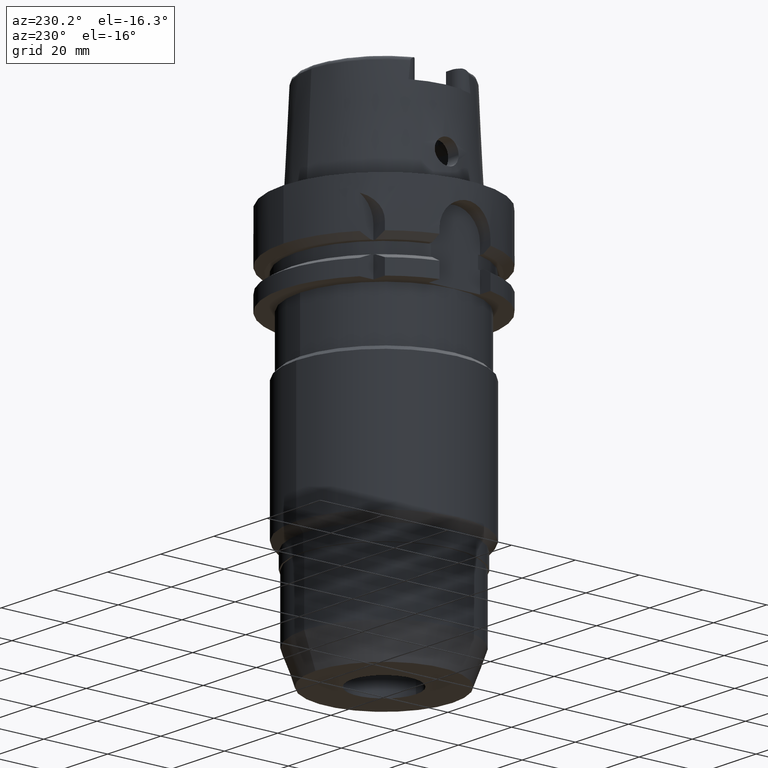
[diagram: clean part render]
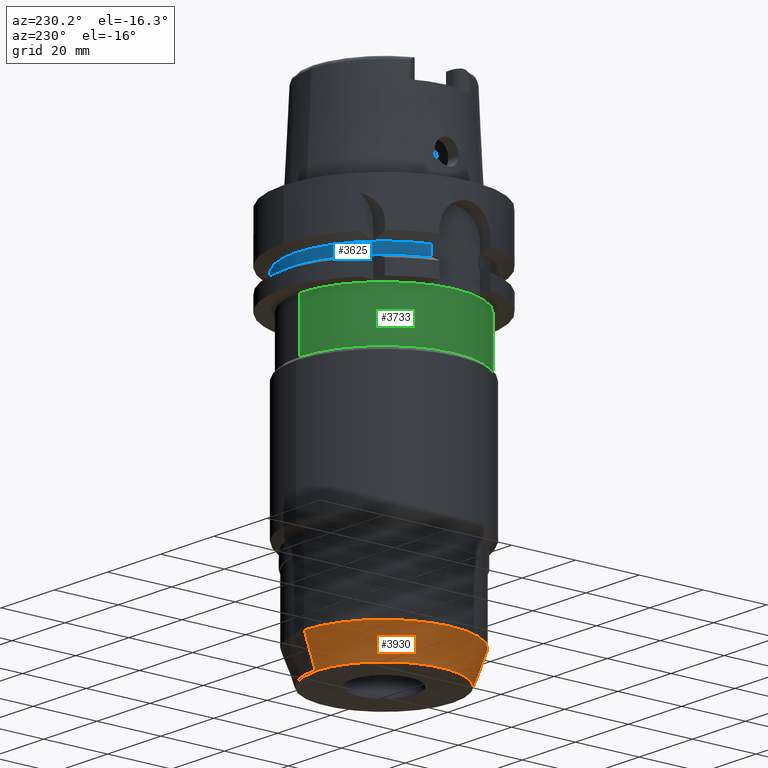
[diagram: same view with three faces highlighted in distinct colors, each labeled with its STEP entity id]
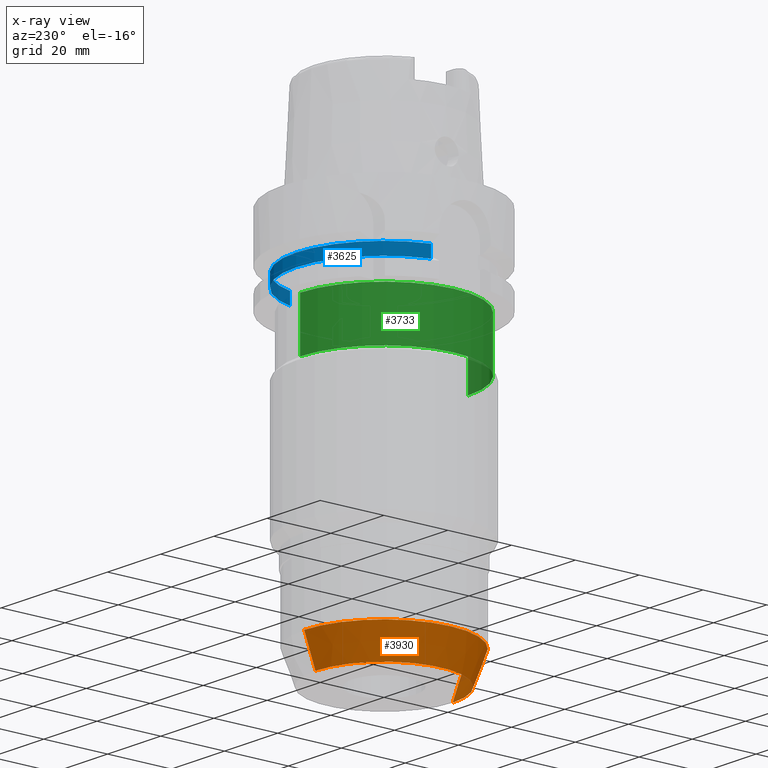
[diagram: x-ray of the same camera — body ghosted, the three highlighted faces saturated]
A machine part, auxiliary view with three faces highlighted in distinct colors.
The next image is the same camera in x-ray (body ghosted, the three faces saturated) — at least one of them is partly hidden behind the body in this view.
Their STEP definitions:

[orange] entity #3930 — the highlighted conical surface has half-angle 20 deg.
#1793=DIRECTION('',(0.E0,-3.420201433258E-1,-9.396926207858E-1));
#1794=VECTOR('',#1793,1.021610661577E1);
#1795=CARTESIAN_POINT('',(0.E0,2.5E1,-1.104E2));
#1796=LINE('',#1795,#1794);
#1808=CARTESIAN_POINT('',(0.E0,0.E0,-1.104E2));
#1809=DIRECTION('',(0.E0,0.E0,1.E0));
#1810=DIRECTION('',(0.E0,1.E0,0.E0));
#1811=AXIS2_PLACEMENT_3D('',#1808,#1809,#1810);
#1816=DIRECTION('',(0.E0,3.420201433258E-1,-9.396926207858E-1));
#1817=VECTOR('',#1816,1.021610661577E1);
#1818=CARTESIAN_POINT('',(0.E0,-2.5E1,-1.104E2));
#1819=LINE('',#1818,#1817);
#1831=CARTESIAN_POINT('',(0.E0,0.E0,-1.2E2));
#1832=DIRECTION('',(0.E0,0.E0,1.E0));
#1833=DIRECTION('',(0.E0,1.E0,0.E0));
#1834=AXIS2_PLACEMENT_3D('',#1831,#1832,#1833);
#2486=CARTESIAN_POINT('',(0.E0,-2.150588575104E1,-1.2E2));
#2487=CARTESIAN_POINT('',(0.E0,2.150588575104E1,-1.2E2));
#2488=VERTEX_POINT('',#2486);
#2489=VERTEX_POINT('',#2487);
#2490=CARTESIAN_POINT('',(0.E0,2.5E1,-1.104E2));
#2491=VERTEX_POINT('',#2490);
#2492=CARTESIAN_POINT('',(0.E0,-2.5E1,-1.104E2));
#2493=VERTEX_POINT('',#2492);
#3918=CARTESIAN_POINT('',(0.E0,0.E0,-1.152E2));
#3919=DIRECTION('',(0.E0,0.E0,1.E0));
#3920=DIRECTION('',(0.E0,1.E0,0.E0));
#3921=AXIS2_PLACEMENT_3D('',#3918,#3919,#3920);
#3922=CONICAL_SURFACE('',#3921,2.325294287552E1,2.E1);
#3923=ORIENTED_EDGE('',*,*,#3908,.F.);
#3924=ORIENTED_EDGE('',*,*,#3885,.T.);
#3925=ORIENTED_EDGE('',*,*,#3912,.T.);
#3927=ORIENTED_EDGE('',*,*,#3926,.F.);
#3928=EDGE_LOOP('',(#3923,#3924,#3925,#3927));
#3929=FACE_OUTER_BOUND('',#3928,.F.);
#1812=CIRCLE('',#1811,2.5E1);
#1835=CIRCLE('',#1834,2.150588575104E1);
#3885=EDGE_CURVE('',#2491,#2493,#1812,.T.);
#3908=EDGE_CURVE('',#2491,#2489,#1796,.T.);
#3912=EDGE_CURVE('',#2493,#2488,#1819,.T.);
#3926=EDGE_CURVE('',#2489,#2488,#1835,.T.);
#3930=ADVANCED_FACE('',(#3929),#3922,.T.);

[blue] entity #3625 — the highlighted cylindrical surface (partial cylindrical patch) has radius 27.5 mm, axis along (0, 0, 1).
#743=CARTESIAN_POINT('',(0.E0,0.E0,-1.6125E1));
#744=DIRECTION('',(0.E0,0.E0,-1.E0));
#745=DIRECTION('',(-9.636363636364E-1,2.672170628491E-1,0.E0));
#746=AXIS2_PLACEMENT_3D('',#743,#744,#745);
#751=CARTESIAN_POINT('',(0.E0,0.E0,-1.6125E1));
#752=DIRECTION('',(0.E0,0.E0,-1.E0));
#753=DIRECTION('',(0.E0,1.E0,0.E0));
#754=AXIS2_PLACEMENT_3D('',#751,#752,#753);
#1442=DIRECTION('',(0.E0,0.E0,-1.E0));
#1443=VECTOR('',#1442,3.75E0);
#1444=CARTESIAN_POINT('',(-2.65E1,7.348469228350E0,-1.6125E1));
#1445=LINE('',#1444,#1443);
#1449=DIRECTION('',(0.E0,0.E0,1.E0));
#1450=VECTOR('',#1449,3.75E0);
#1451=CARTESIAN_POINT('',(2.65E1,7.348469228350E0,-1.9875E1));
#1452=LINE('',#1451,#1450);
#1479=CARTESIAN_POINT('',(0.E0,0.E0,-1.9875E1));
#1480=DIRECTION('',(0.E0,0.E0,1.E0));
#1481=DIRECTION('',(9.636363636364E-1,2.672170628491E-1,0.E0));
#1482=AXIS2_PLACEMENT_3D('',#1479,#1480,#1481);
#1487=CARTESIAN_POINT('',(0.E0,0.E0,-1.9875E1));
#1488=DIRECTION('',(0.E0,0.E0,1.E0));
#1489=DIRECTION('',(0.E0,1.E0,0.E0));
#1490=AXIS2_PLACEMENT_3D('',#1487,#1488,#1489);
#2592=CARTESIAN_POINT('',(-2.65E1,7.348469228350E0,-1.9875E1));
#2593=VERTEX_POINT('',#2592);
#2594=CARTESIAN_POINT('',(-2.65E1,7.348469228350E0,-1.6125E1));
#2595=VERTEX_POINT('',#2594);
#2628=CARTESIAN_POINT('',(2.65E1,7.348469228350E0,-1.9875E1));
#2629=VERTEX_POINT('',#2628);
#2630=CARTESIAN_POINT('',(1.243449787580E-14,2.75E1,-1.9875E1));
#2631=VERTEX_POINT('',#2630);
#2632=CARTESIAN_POINT('',(2.65E1,7.348469228350E0,-1.6125E1));
#2633=VERTEX_POINT('',#2632);
#2634=CARTESIAN_POINT('',(-1.243449787580E-14,2.75E1,-1.6125E1));
#2635=VERTEX_POINT('',#2634);
#3610=CARTESIAN_POINT('',(0.E0,0.E0,-1.276E2));
#3611=DIRECTION('',(0.E0,0.E0,1.E0));
#3612=DIRECTION('',(0.E0,1.E0,0.E0));
#3613=AXIS2_PLACEMENT_3D('',#3610,#3611,#3612);
#3614=CYLINDRICAL_SURFACE('',#3613,2.75E1);
#3615=ORIENTED_EDGE('',*,*,#3255,.T.);
#3617=ORIENTED_EDGE('',*,*,#3616,.F.);
#3619=ORIENTED_EDGE('',*,*,#3618,.F.);
#3620=ORIENTED_EDGE('',*,*,#3385,.T.);
#3621=ORIENTED_EDGE('',*,*,#3122,.F.);
#3622=ORIENTED_EDGE('',*,*,#3120,.F.);
#3623=EDGE_LOOP('',(#3615,#3617,#3619,#3620,#3621,#3622));
#3624=FACE_OUTER_BOUND('',#3623,.F.);
#747=CIRCLE('',#746,2.75E1);
#755=CIRCLE('',#754,2.75E1);
#1483=CIRCLE('',#1482,2.75E1);
#1491=CIRCLE('',#1490,2.75E1);
#3120=EDGE_CURVE('',#2595,#2635,#747,.T.);
#3122=EDGE_CURVE('',#2635,#2633,#755,.T.);
#3255=EDGE_CURVE('',#2595,#2593,#1445,.T.);
#3385=EDGE_CURVE('',#2629,#2633,#1452,.T.);
#3616=EDGE_CURVE('',#2631,#2593,#1491,.T.);
#3618=EDGE_CURVE('',#2629,#2631,#1483,.T.);
#3625=ADVANCED_FACE('',(#3624),#3614,.T.);

[green] entity #3733 — the highlighted cylindrical surface (partial cylindrical patch) has radius 26.3 mm, axis along (0, 0, 1).
#1038=CARTESIAN_POINT('',(0.E0,0.E0,-2.6E1));
#1039=DIRECTION('',(0.E0,0.E0,-1.E0));
#1040=DIRECTION('',(0.E0,-1.E0,0.E0));
#1041=AXIS2_PLACEMENT_3D('',#1038,#1039,#1040);
#1613=DIRECTION('',(0.E0,0.E0,-1.E0));
#1614=VECTOR('',#1613,1.6E1);
#1615=CARTESIAN_POINT('',(0.E0,-2.63E1,-2.6E1));
#1616=LINE('',#1615,#1614);
#1620=DIRECTION('',(0.E0,0.E0,-1.E0));
#1621=VECTOR('',#1620,1.6E1);
#1622=CARTESIAN_POINT('',(0.E0,2.63E1,-2.6E1));
#1623=LINE('',#1622,#1621);
#1650=CARTESIAN_POINT('',(0.E0,0.E0,-4.2E1));
#1651=DIRECTION('',(0.E0,0.E0,1.E0));
#1652=DIRECTION('',(0.E0,1.E0,0.E0));
#1653=AXIS2_PLACEMENT_3D('',#1650,#1651,#1652);
#2514=CARTESIAN_POINT('',(0.E0,2.63E1,-4.2E1));
#2515=VERTEX_POINT('',#2514);
#2516=CARTESIAN_POINT('',(0.E0,-2.63E1,-4.2E1));
#2517=VERTEX_POINT('',#2516);
#2518=CARTESIAN_POINT('',(0.E0,2.63E1,-2.6E1));
#2519=VERTEX_POINT('',#2518);
#2520=CARTESIAN_POINT('',(0.E0,-2.63E1,-2.6E1));
#2521=VERTEX_POINT('',#2520);
#3719=CARTESIAN_POINT('',(0.E0,0.E0,-1.276E2));
#3720=DIRECTION('',(0.E0,0.E0,1.E0));
#3721=DIRECTION('',(0.E0,1.E0,0.E0));
#3722=AXIS2_PLACEMENT_3D('',#3719,#3720,#3721);
#3723=CYLINDRICAL_SURFACE('',#3722,2.63E1);
#3725=ORIENTED_EDGE('',*,*,#3724,.F.);
#3726=ORIENTED_EDGE('',*,*,#3304,.F.);
#3728=ORIENTED_EDGE('',*,*,#3727,.T.);
#3730=ORIENTED_EDGE('',*,*,#3729,.F.);
#3731=EDGE_LOOP('',(#3725,#3726,#3728,#3730));
#3732=FACE_OUTER_BOUND('',#3731,.F.);
#1042=CIRCLE('',#1041,2.63E1);
#1654=CIRCLE('',#1653,2.63E1);
#3304=EDGE_CURVE('',#2521,#2519,#1042,.T.);
#3724=EDGE_CURVE('',#2519,#2515,#1623,.T.);
#3727=EDGE_CURVE('',#2521,#2517,#1616,.T.);
#3729=EDGE_CURVE('',#2515,#2517,#1654,.T.);
#3733=ADVANCED_FACE('',(#3732),#3723,.T.);